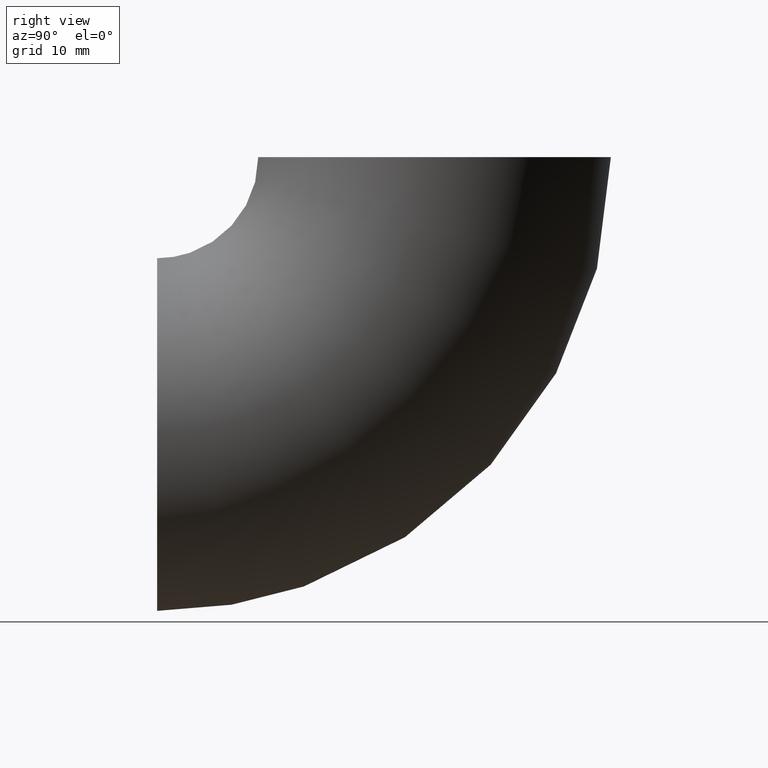
[diagram: clean part render]
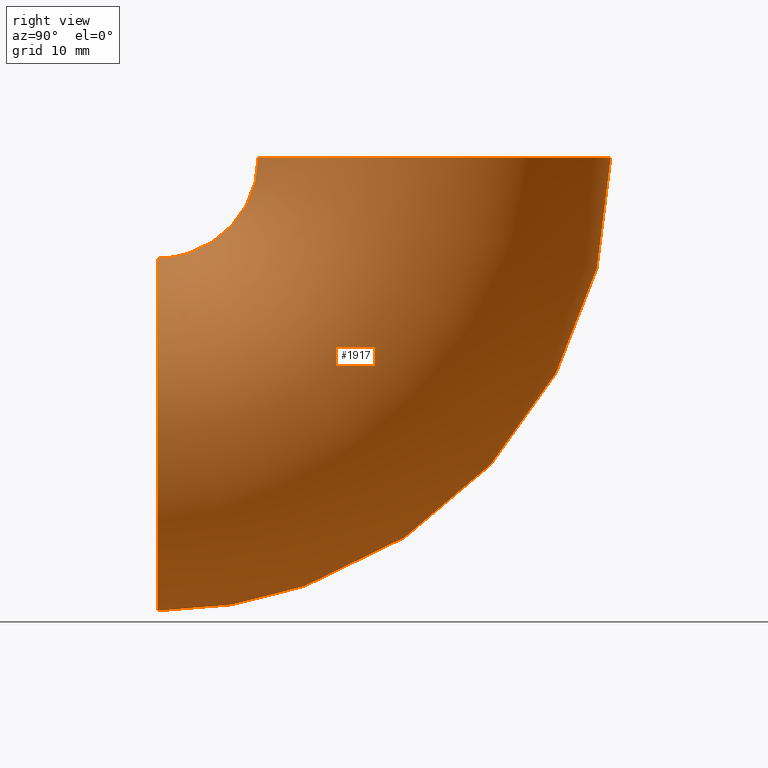
[diagram: same view with one face highlighted and labeled with its STEP entity id]
A machine part, right view. The second image highlights one B-rep face of the part: STEP entity #1917.
In plain terms, the highlighted toroidal blend (fillet) surface has major radius 38 mm and minor (blend) radius 24.15 mm.
Its self-contained STEP definition (entity closure, byte-faithful):
#326 = EDGE_LOOP ( 'NONE', ( #4610 ) ) ;
#916 = DIRECTION ( 'NONE',  ( 0.000000000000000000, 6.123233995736766036E-17, 1.000000000000000000 ) ) ;
#1003 = TOROIDAL_SURFACE ( 'NONE', #4222, 38.00000000000000000, 24.14999999999999858 ) ;
#1234 = EDGE_LOOP ( 'NONE', ( #5888 ) ) ;
#1917 = ADVANCED_FACE ( 'NONE', ( #3576, #4746 ), #1003, .T. ) ;
#2110 = VERTEX_POINT ( 'NONE', #6148 ) ;
#2829 = VERTEX_POINT ( 'NONE', #4312 ) ;
#3192 = DIRECTION ( 'NONE',  ( 0.000000000000000000, 0.000000000000000000, 1.000000000000000000 ) ) ;
#3552 = CIRCLE ( 'NONE', #8439, 24.14999999999999858 ) ;
#3576 = FACE_OUTER_BOUND ( 'NONE', #326, .T. ) ;
#3637 = CARTESIAN_POINT ( 'NONE',  ( 0.000000000000000000, 38.00000000000000000, -2.326828918379970970E-15 ) ) ;
#3678 = DIRECTION ( 'NONE',  ( -1.000000000000000000, -0.000000000000000000, -0.000000000000000000 ) ) ;
#4222 = AXIS2_PLACEMENT_3D ( 'NONE', #8250, #3678, #10942 ) ;
#4312 = CARTESIAN_POINT ( 'NONE',  ( 0.000000000000000000, 0.000000000000000000, -13.85000000000000142 ) ) ;
#4535 = DIRECTION ( 'NONE',  ( 0.000000000000000000, -1.000000000000000000, 6.123233995736766036E-17 ) ) ;
#4610 = ORIENTED_EDGE ( 'NONE', *, *, #4647, .F. ) ;
#4647 = EDGE_CURVE ( 'NONE', #2110, #2110, #3552, .T. ) ;
#4746 = FACE_OUTER_BOUND ( 'NONE', #1234, .T. ) ;
#5471 = EDGE_CURVE ( 'NONE', #2829, #2829, #10118, .T. ) ;
#5832 = DIRECTION ( 'NONE',  ( 0.000000000000000000, 1.000000000000000000, 0.000000000000000000 ) ) ;
#5888 = ORIENTED_EDGE ( 'NONE', *, *, #5471, .T. ) ;
#6148 = CARTESIAN_POINT ( 'NONE',  ( 0.000000000000000000, 13.85000000000000142, -8.480679084095420054E-16 ) ) ;
#6765 = AXIS2_PLACEMENT_3D ( 'NONE', #6808, #5832, #3192 ) ;
#6808 = CARTESIAN_POINT ( 'NONE',  ( 0.000000000000000000, 0.000000000000000000, -38.00000000000000000 ) ) ;
#8250 = CARTESIAN_POINT ( 'NONE',  ( 0.000000000000000000, 0.000000000000000000, 0.000000000000000000 ) ) ;
#8439 = AXIS2_PLACEMENT_3D ( 'NONE', #3637, #916, #4535 ) ;
#10118 = CIRCLE ( 'NONE', #6765, 24.14999999999999858 ) ;
#10942 = DIRECTION ( 'NONE',  ( 0.000000000000000000, 0.000000000000000000, 1.000000000000000000 ) ) ;